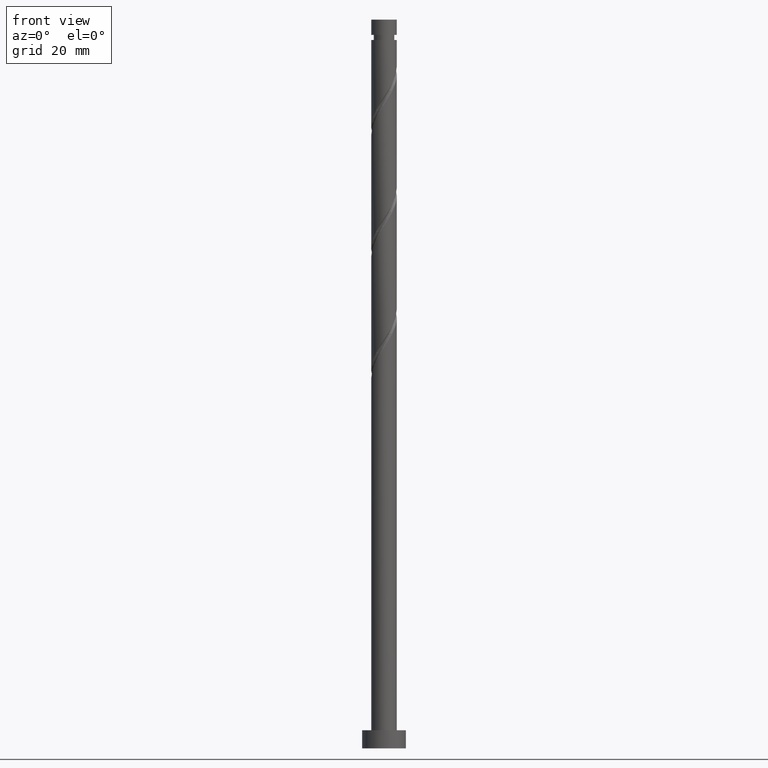
[diagram: clean part render]
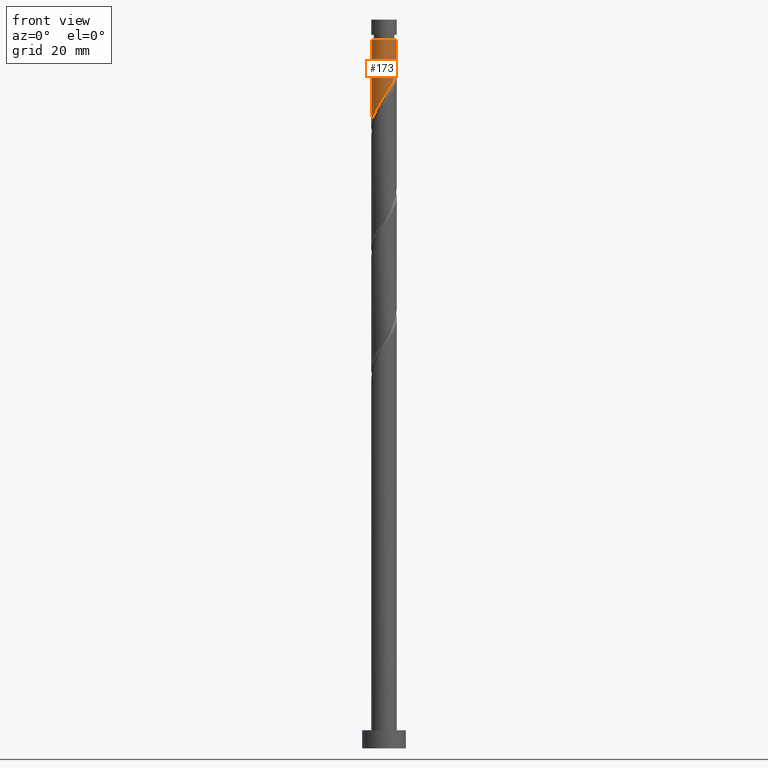
[diagram: same view with one face highlighted and labeled with its STEP entity id]
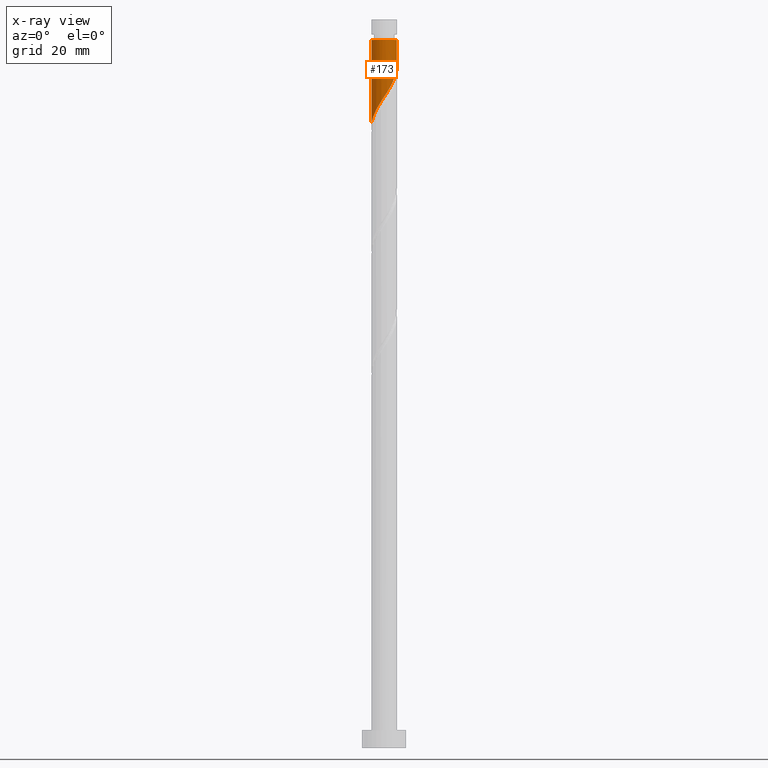
[diagram: x-ray of the same camera — body ghosted, the highlighted face saturated]
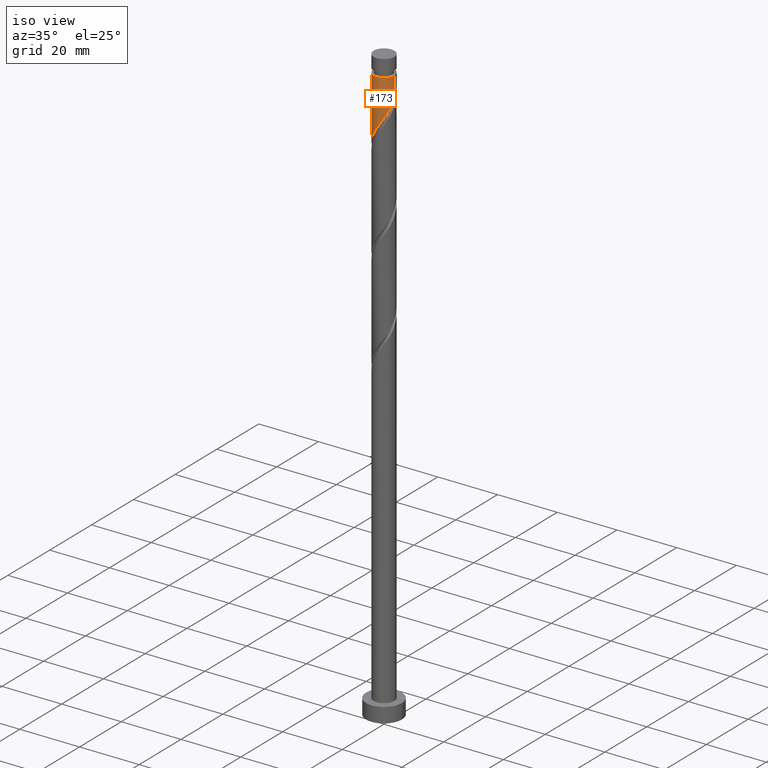
[diagram: same view with one face highlighted and labeled with its STEP entity id]
A machine part, front view. The second image highlights one B-rep face of the part: STEP entity #173.
The next image is the same camera in x-ray: the body ghosted, the highlighted face saturated — about 0% of this face is hidden behind the body in this view.
A second angle (iso view) of the same face is appended — the face is thin or edge-on in the first view.
In plain terms, the highlighted cylindrical surface (edge-blend (fillet) strip) has radius 3.5 mm, axis along (-0, -0, -1).
Its self-contained STEP definition (entity closure, byte-faithful):
#110 = AXIS2_PLACEMENT_3D ( 'NONE', #997, #1531, #871 ) ;
#126 = CARTESIAN_POINT ( 'NONE',  ( -0.2449231392498680548, -3.521694806814219092, 178.4200427858847036 ) ) ;
#150 = CARTESIAN_POINT ( 'NONE',  ( -1.560508168335765555, -3.132860395318846081, 176.3367094525513892 ) ) ;
#173 = ADVANCED_FACE ( 'NONE', ( #237 ), #782, .T. ) ;
#229 = CARTESIAN_POINT ( 'NONE',  ( 3.500000000000000444, -0.3517632353407244006, 186.5890719607943709 ) ) ;
#237 = FACE_OUTER_BOUND ( 'NONE', #1192, .T. ) ;
#284 = EDGE_CURVE ( 'NONE', #337, #972, #1202, .T. ) ;
#291 = CARTESIAN_POINT ( 'NONE',  ( -3.499999999999988454, 0.000000000000000000, 194.3922650081069321 ) ) ;
#300 = CARTESIAN_POINT ( 'NONE',  ( -2.318179077886494799, -2.622221531993306876, 174.9478205636624750 ) ) ;
#337 = VERTEX_POINT ( 'NONE', #414 ) ;
#341 = VECTOR ( 'NONE', #636, 1000.000000000000000 ) ;
#379 = CARTESIAN_POINT ( 'NONE',  ( 3.338305193185780340, -1.148059272699405664, 185.3644872303291606 ) ) ;
#399 = CARTESIAN_POINT ( 'NONE',  ( 1.548737742842089427, -3.172338736701779460, 181.1978205636624466 ) ) ;
#404 = DIRECTION ( 'NONE',  ( -1.000000000000000000, 0.000000000000000000, 0.000000000000000000 ) ) ;
#411 = CARTESIAN_POINT ( 'NONE',  ( -3.318712737967941973, -1.111820922113505139, 172.1700427858846751 ) ) ;
#414 = CARTESIAN_POINT ( 'NONE',  ( 3.499999999999988454, 4.286263797015728706E-16, 194.3922650081069321 ) ) ;
#420 = CARTESIAN_POINT ( 'NONE',  ( -2.917869914251318697, -1.932882604688397343, 173.5589316747735893 ) ) ;
#507 = LINE ( 'NONE', #1727, #341 ) ;
#511 = CARTESIAN_POINT ( 'NONE',  ( 2.927415597451909601, -1.972957063972129665, 183.9755983414403033 ) ) ;
#518 = CARTESIAN_POINT ( 'NONE',  ( 2.622221531993306876, -2.318179077886495243, 183.2811538969958178 ) ) ;
#519 = DIRECTION ( 'NONE',  ( -0.000000000000000000, -0.000000000000000000, -1.000000000000000000 ) ) ;
#531 = EDGE_CURVE ( 'NONE', #337, #831, #844, .T. ) ;
#561 =( BOUNDED_CURVE ( )  B_SPLINE_CURVE ( 2, ( #645, #229, #1050, #379, #639, #511, #518, #1598, #1581, #399, #931, #802, #1323, #126, #1201, #1095, #150, #1354, #300, #578, #420, #1216, #411, #1228, #827, #666, #1744 ),
 .UNSPECIFIED., .F., .T. ) 
 B_SPLINE_CURVE_WITH_KNOTS ( ( 3, 2, 2, 2, 2, 2, 2, 2, 2, 2, 2, 2, 2, 3 ),
 ( 0.3045317669814462391, 0.3125000000000000000, 0.3229166666666666852, 0.3333333333333333148, 0.3437500000000000000, 0.3541666666666666852, 0.3645833333333333148, 0.3750000000000000000, 0.3854166666666666852, 0.3958333333333333148, 0.4062500000000000000, 0.4166666666666666852, 0.4270833333333333148, 0.4295317669814462946 ),
 .UNSPECIFIED. ) 
 CURVE ( )  GEOMETRIC_REPRESENTATION_ITEM ( )  RATIONAL_B_SPLINE_CURVE ( ( 0.9062941362546435009, 0.9031415850403476941, 0.9090909090909231605, 0.9013135103398414172, 0.9090909090909231605, 0.9013135103398414172, 0.9090909090909231605, 0.9013135103398414172, 0.9090909090909231605, 0.9013135103398414172, 0.9090909090909231605, 0.9013135103398414172, 0.9090909090909231605, 0.9013135103398414172, 0.9090909090909231605, 0.9013135103398414172, 0.9090909090909231605, 0.9013135103398414172, 0.9090909090909231605, 0.9013135103398414172, 0.9090909090909231605, 0.9013135103398414172, 0.9090909090909231605, 0.9013135103398414172, 0.9090909090909231605, 0.9072628343904169945, 0.9062941362546435009 ) ) 
 REPRESENTATION_ITEM ( '' )  );
#578 = CARTESIAN_POINT ( 'NONE',  ( -2.663401091800861042, -2.317027466534704150, 174.2533761192180464 ) ) ;
#636 = DIRECTION ( 'NONE',  ( -0.000000000000000000, -0.000000000000000000, -1.000000000000000000 ) ) ;
#639 = CARTESIAN_POINT ( 'NONE',  ( 3.132860395318845192, -1.560508168335767554, 184.6700427858847320 ) ) ;
#645 = CARTESIAN_POINT ( 'NONE',  ( 3.500000000000001332, 1.256117893264088476E-15, 187.1224983299836708 ) ) ;
#666 = CARTESIAN_POINT ( 'NONE',  ( -3.499999999999999556, -0.1075968308018550035, 170.6189953513451485 ) ) ;
#668 = EDGE_CURVE ( 'NONE', #972, #815, #561, .T. ) ;
#717 = DIRECTION ( 'NONE',  ( -0.000000000000000000, -0.000000000000000000, -1.000000000000000000 ) ) ;
#782 = CYLINDRICAL_SURFACE ( 'NONE', #1094, 3.500000000000000000 ) ;
#802 = CARTESIAN_POINT ( 'NONE',  ( 0.6749041013849200743, -3.465086739234108482, 179.8089316747736177 ) ) ;
#815 = VERTEX_POINT ( 'NONE', #1331 ) ;
#827 = CARTESIAN_POINT ( 'NONE',  ( -3.493390773024161788, -0.2149904810675270228, 170.7811538969957894 ) ) ;
#831 = VERTEX_POINT ( 'NONE', #291 ) ;
#844 = CIRCLE ( 'NONE', #110, 3.499999999999988454 ) ;
#871 = DIRECTION ( 'NONE',  ( -1.000000000000000000, 0.000000000000000000, 0.000000000000000000 ) ) ;
#878 = ORIENTED_EDGE ( 'NONE', *, *, #531, .T. ) ;
#912 = ORIENTED_EDGE ( 'NONE', *, *, #668, .F. ) ;
#931 = CARTESIAN_POINT ( 'NONE',  ( 1.111820922113505139, -3.318712737967942861, 180.5033761192180179 ) ) ;
#972 = VERTEX_POINT ( 'NONE', #1406 ) ;
#997 = CARTESIAN_POINT ( 'NONE',  ( 0.000000000000000000, 0.000000000000000000, 194.3922650081069321 ) ) ;
#1030 = ORIENTED_EDGE ( 'NONE', *, *, #1146, .T. ) ;
#1044 = CARTESIAN_POINT ( 'NONE',  ( 0.000000000000000000, 0.000000000000000000, 200.0000000000000000 ) ) ;
#1050 = CARTESIAN_POINT ( 'NONE',  ( 3.430000000000000160, -0.6964912059746354300, 186.0589316747735893 ) ) ;
#1094 = AXIS2_PLACEMENT_3D ( 'NONE', #1044, #519, #404 ) ;
#1095 = CARTESIAN_POINT ( 'NONE',  ( -1.148059272699404110, -3.338305193185782116, 177.0311538969958463 ) ) ;
#1146 = EDGE_CURVE ( 'NONE', #831, #815, #507, .T. ) ;
#1149 = VECTOR ( 'NONE', #717, 1000.000000000000000 ) ;
#1192 = EDGE_LOOP ( 'NONE', ( #1605, #878, #1030, #912 ) ) ;
#1201 = CARTESIAN_POINT ( 'NONE',  ( -0.6964912059746352080, -3.430000000000000160, 177.7255983414402181 ) ) ;
#1202 = LINE ( 'NONE', #1336, #1149 ) ;
#1216 = CARTESIAN_POINT ( 'NONE',  ( -3.172338736701779460, -1.548737742842089427, 172.8644872303291606 ) ) ;
#1228 = CARTESIAN_POINT ( 'NONE',  ( -3.465086739234107593, -0.6749041013849210735, 171.4755983414403318 ) ) ;
#1323 = CARTESIAN_POINT ( 'NONE',  ( 0.2149904810675259126, -3.493390773024161788, 179.1144872303291606 ) ) ;
#1331 = CARTESIAN_POINT ( 'NONE',  ( -3.500000000000000444, -2.153344959881294868E-15, 170.4558316633169852 ) ) ;
#1336 = CARTESIAN_POINT ( 'NONE',  ( 3.500000000000000000, 4.286263797015736595E-16, 200.0000000000000000 ) ) ;
#1354 = CARTESIAN_POINT ( 'NONE',  ( -1.972957063972128333, -2.927415597451910934, 175.6422650081069321 ) ) ;
#1406 = CARTESIAN_POINT ( 'NONE',  ( 3.500000000000001332, 1.256117893264088476E-15, 187.1224983299836708 ) ) ;
#1531 = DIRECTION ( 'NONE',  ( -0.000000000000000000, -0.000000000000000000, -1.000000000000000000 ) ) ;
#1581 = CARTESIAN_POINT ( 'NONE',  ( 1.932882604688395789, -2.917869914251319141, 181.8922650081069321 ) ) ;
#1598 = CARTESIAN_POINT ( 'NONE',  ( 2.317027466534703262, -2.663401091800861042, 182.5867094525514460 ) ) ;
#1605 = ORIENTED_EDGE ( 'NONE', *, *, #284, .F. ) ;
#1727 = CARTESIAN_POINT ( 'NONE',  ( -3.500000000000000000, 0.000000000000000000, 200.0000000000000000 ) ) ;
#1744 = CARTESIAN_POINT ( 'NONE',  ( -3.500000000000000444, -2.153344959881294868E-15, 170.4558316633169852 ) ) ;